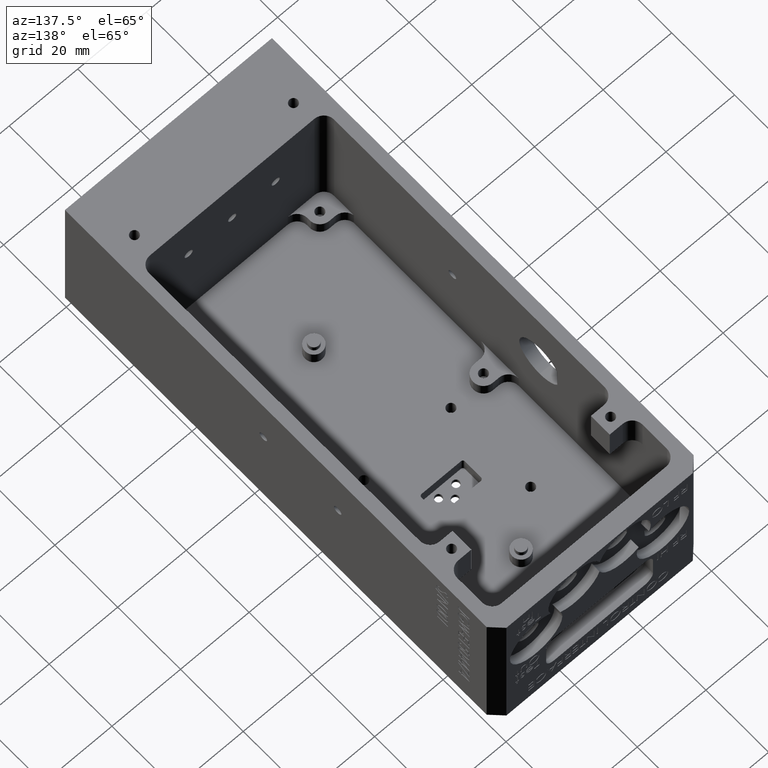
[diagram: clean part render]
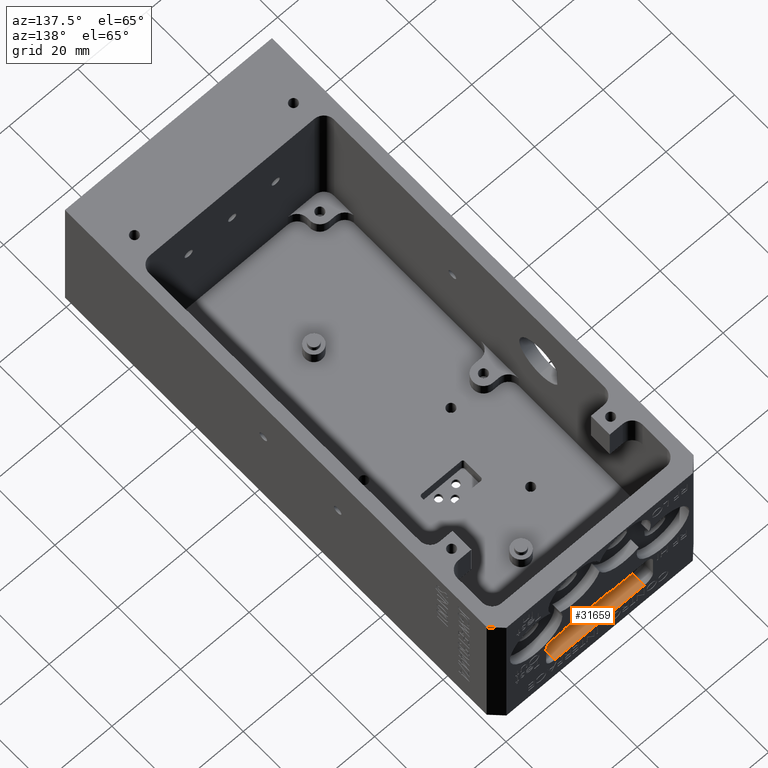
[diagram: same view with one face highlighted and labeled with its STEP entity id]
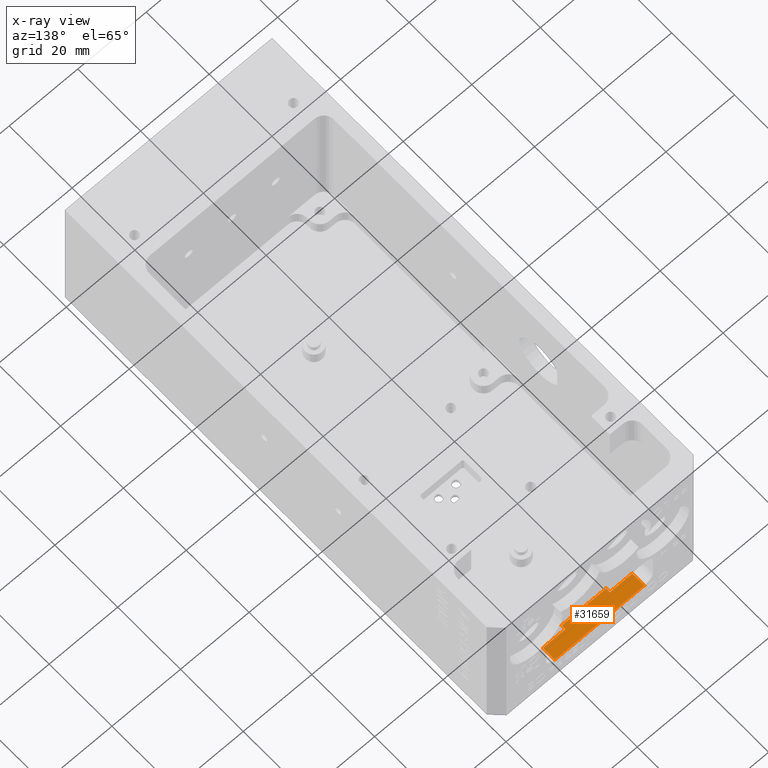
[diagram: x-ray of the same camera — body ghosted, the highlighted face saturated]
A machine part, auxiliary view. The second image highlights one B-rep face of the part: STEP entity #31659.
The next image is the same camera in x-ray: the body ghosted, the highlighted face saturated — about 0% of this face is hidden behind the body in this view.
In plain terms, the highlighted planar face has unit normal (0, 0, -1).
Its self-contained STEP definition (entity closure, byte-faithful):
#115 = CARTESIAN_POINT ( 'NONE',  ( 17.14000000000001800, 133.4899999999999800, -36.69999999999999600 ) ) ;
#258 = DIRECTION ( 'NONE',  ( -1.000000000000000000, -1.062617749449807300E-015, -0.0000000000000000000 ) ) ;
#587 = ORIENTED_EDGE ( 'NONE', *, *, #24191, .F. ) ;
#837 = VECTOR ( 'NONE', #22768, 1000.000000000000000 ) ;
#977 = ORIENTED_EDGE ( 'NONE', *, *, #16273, .T. ) ;
#3255 = DIRECTION ( 'NONE',  ( -1.000000000000000000, 0.0000000000000000000, -0.0000000000000000000 ) ) ;
#3340 = VECTOR ( 'NONE', #9993, 1000.000000000000000 ) ;
#3623 = VERTEX_POINT ( 'NONE', #31852 ) ;
#5867 = CARTESIAN_POINT ( 'NONE',  ( 43.25999999999996200, 137.3000000000000100, -36.69999999999999600 ) ) ;
#6052 = CARTESIAN_POINT ( 'NONE',  ( 17.14000000000001500, 137.2999999999999800, -36.69999999999999600 ) ) ;
#6144 = CARTESIAN_POINT ( 'NONE',  ( 43.25999999999996200, 133.4900000000000100, -36.69999999999999600 ) ) ;
#6733 = CARTESIAN_POINT ( 'NONE',  ( 36.70499999999999800, 123.6799999999999900, -36.69999999999999600 ) ) ;
#7494 = CARTESIAN_POINT ( 'NONE',  ( 23.69500000000000000, 123.6799999999999600, -36.69999999999999600 ) ) ;
#9632 = DIRECTION ( 'NONE',  ( 1.000000000000000000, 0.0000000000000000000, 0.0000000000000000000 ) ) ;
#9993 = DIRECTION ( 'NONE',  ( -4.595293976097504800E-016, 1.000000000000000000, -0.0000000000000000000 ) ) ;
#10121 = LINE ( 'NONE', #7494, #36976 ) ;
#11136 = CARTESIAN_POINT ( 'NONE',  ( 17.14000000000001800, 133.4899999999999800, -36.69999999999999600 ) ) ;
#11758 = ORIENTED_EDGE ( 'NONE', *, *, #11780, .F. ) ;
#11780 = EDGE_CURVE ( 'NONE', #34385, #32103, #10121, .T. ) ;
#13070 = EDGE_CURVE ( 'NONE', #14433, #29289, #27850, .T. ) ;
#13315 = LINE ( 'NONE', #115, #39096 ) ;
#14433 = VERTEX_POINT ( 'NONE', #11136 ) ;
#16273 = EDGE_CURVE ( 'NONE', #36084, #29289, #20350, .T. ) ;
#16305 = VECTOR ( 'NONE', #41989, 1000.000000000000000 ) ;
#18151 = LINE ( 'NONE', #38864, #837 ) ;
#19434 = CARTESIAN_POINT ( 'NONE',  ( 17.14000000000001800, 133.4899999999999800, -36.69999999999999600 ) ) ;
#20241 = VECTOR ( 'NONE', #41041, 1000.000000000000000 ) ;
#20350 = LINE ( 'NONE', #6052, #26923 ) ;
#20511 = FACE_OUTER_BOUND ( 'NONE', #41587, .T. ) ;
#20555 = EDGE_CURVE ( 'NONE', #34991, #3623, #29186, .T. ) ;
#22393 = PLANE ( 'NONE',  #37442 ) ;
#22672 = DIRECTION ( 'NONE',  ( 0.0000000000000000000, 0.0000000000000000000, -1.000000000000000000 ) ) ;
#22768 = DIRECTION ( 'NONE',  ( -4.595293976097504800E-016, 1.000000000000000000, -0.0000000000000000000 ) ) ;
#23768 = DIRECTION ( 'NONE',  ( -4.595293976097504800E-016, 1.000000000000000000, -0.0000000000000000000 ) ) ;
#24191 = EDGE_CURVE ( 'NONE', #36164, #3623, #13315, .T. ) ;
#24743 = EDGE_CURVE ( 'NONE', #32103, #14433, #40117, .T. ) ;
#25468 = DIRECTION ( 'NONE',  ( -1.000000000000000000, -1.062617749449807300E-015, -0.0000000000000000000 ) ) ;
#25521 = CARTESIAN_POINT ( 'NONE',  ( 23.69499999999999700, 132.2999999999999800, -36.69999999999999600 ) ) ;
#25605 = CARTESIAN_POINT ( 'NONE',  ( 17.14000000000001500, 137.2999999999999800, -36.69999999999999600 ) ) ;
#25853 = CARTESIAN_POINT ( 'NONE',  ( 17.14000000000001800, 133.4899999999999800, -36.69999999999999600 ) ) ;
#26923 = VECTOR ( 'NONE', #25468, 1000.000000000000000 ) ;
#27850 = LINE ( 'NONE', #41308, #20241 ) ;
#28693 = CARTESIAN_POINT ( 'NONE',  ( 23.69499999999999700, 133.4899999999999800, -36.69999999999999600 ) ) ;
#29019 = CARTESIAN_POINT ( 'NONE',  ( 6.200000000000001100, 132.2999999999999800, -36.69999999999999600 ) ) ;
#29186 = LINE ( 'NONE', #6733, #3340 ) ;
#29289 = VERTEX_POINT ( 'NONE', #25605 ) ;
#29346 = EDGE_CURVE ( 'NONE', #36164, #36084, #18151, .T. ) ;
#30406 = ORIENTED_EDGE ( 'NONE', *, *, #20555, .T. ) ;
#31659 = ADVANCED_FACE ( 'NONE', ( #20511 ), #22393, .F. ) ;
#31728 = ORIENTED_EDGE ( 'NONE', *, *, #29346, .T. ) ;
#31852 = CARTESIAN_POINT ( 'NONE',  ( 36.70499999999999100, 133.4900000000000100, -36.69999999999999600 ) ) ;
#32103 = VERTEX_POINT ( 'NONE', #28693 ) ;
#33018 = ORIENTED_EDGE ( 'NONE', *, *, #24743, .F. ) ;
#34385 = VERTEX_POINT ( 'NONE', #25521 ) ;
#34722 = VECTOR ( 'NONE', #9632, 1000.000000000000000 ) ;
#34893 = ORIENTED_EDGE ( 'NONE', *, *, #13070, .F. ) ;
#34991 = VERTEX_POINT ( 'NONE', #40456 ) ;
#35711 = LINE ( 'NONE', #29019, #34722 ) ;
#36084 = VERTEX_POINT ( 'NONE', #5867 ) ;
#36164 = VERTEX_POINT ( 'NONE', #6144 ) ;
#36976 = VECTOR ( 'NONE', #23768, 1000.000000000000000 ) ;
#37442 = AXIS2_PLACEMENT_3D ( 'NONE', #19434, #22672, #3255 ) ;
#37759 = ORIENTED_EDGE ( 'NONE', *, *, #39008, .T. ) ;
#38864 = CARTESIAN_POINT ( 'NONE',  ( 43.25999999999996200, 133.4900000000000100, -36.69999999999999600 ) ) ;
#39008 = EDGE_CURVE ( 'NONE', #34385, #34991, #35711, .T. ) ;
#39096 = VECTOR ( 'NONE', #258, 1000.000000000000000 ) ;
#40117 = LINE ( 'NONE', #25853, #16305 ) ;
#40456 = CARTESIAN_POINT ( 'NONE',  ( 36.70499999999999100, 132.2999999999999800, -36.69999999999999600 ) ) ;
#41041 = DIRECTION ( 'NONE',  ( -4.595293976097504800E-016, 1.000000000000000000, -0.0000000000000000000 ) ) ;
#41308 = CARTESIAN_POINT ( 'NONE',  ( 17.14000000000001800, 133.4899999999999800, -36.69999999999999600 ) ) ;
#41587 = EDGE_LOOP ( 'NONE', ( #977, #34893, #33018, #11758, #37759, #30406, #587, #31728 ) ) ;
#41989 = DIRECTION ( 'NONE',  ( -1.000000000000000000, -1.062617749449807300E-015, -0.0000000000000000000 ) ) ;